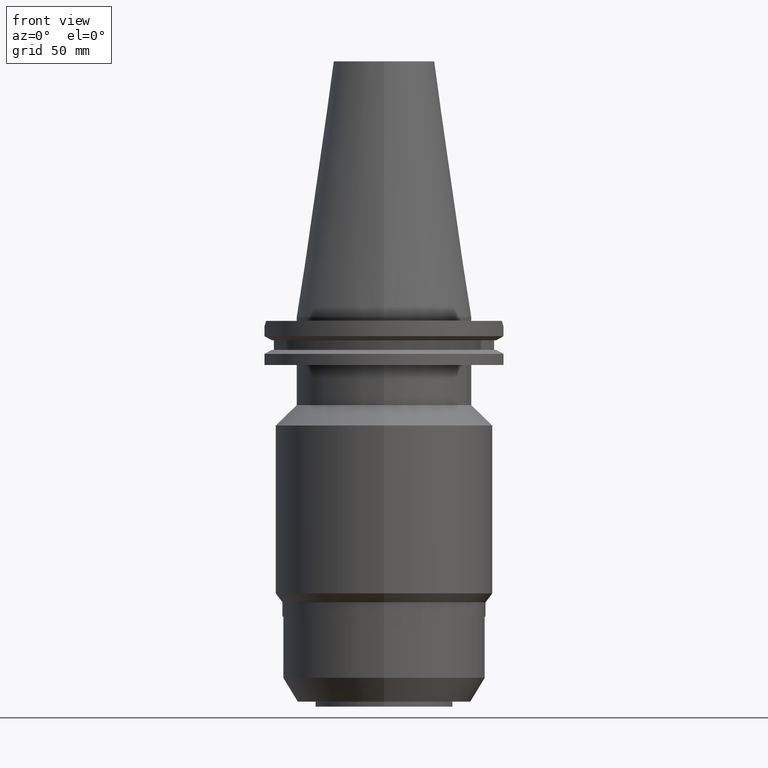
[diagram: clean part render]
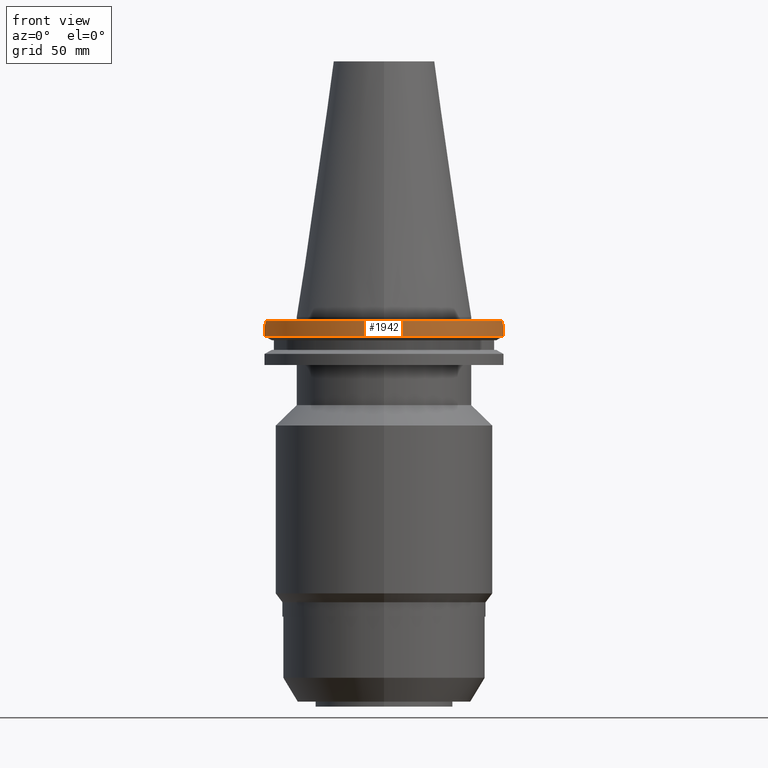
[diagram: same view with one face highlighted and labeled with its STEP entity id]
A machine part, front view. The second image highlights one B-rep face of the part: STEP entity #1942.
In plain terms, the highlighted cylindrical surface (partial cylindrical patch) has radius 49.2125 mm, axis along (0, 0, -1).
Its self-contained STEP definition (entity closure, byte-faithful):
#108=CARTESIAN_POINT('',(0.E0,2.625887666732E-14,-1.5E0));
#109=DIRECTION('',(0.E0,0.E0,-1.E0));
#110=DIRECTION('',(9.514024724200E-1,-3.079502159004E-1,0.E0));
#111=AXIS2_PLACEMENT_3D('',#108,#109,#110);
#116=CARTESIAN_POINT('',(0.E0,2.625887666732E-14,-1.5E0));
#117=DIRECTION('',(0.E0,0.E0,-1.E0));
#118=DIRECTION('',(0.E0,-1.E0,0.E0));
#119=AXIS2_PLACEMENT_3D('',#116,#117,#118);
#575=CARTESIAN_POINT('',(4.682089417397E1,-1.5155E1,-1.5E0));
#576=CARTESIAN_POINT('',(4.705739607797E1,-1.442433483212E1,-2.230665167880E0));
#577=CARTESIAN_POINT('',(4.727588310257E1,-1.369098379593E1,-2.964016204073E0));
#578=CARTESIAN_POINT('',(4.747671146204E1,-1.2955E1,-3.699999999999E0));
#583=DIRECTION('',(2.622645846769E-13,-3.323839354412E-14,-1.E0));
#584=VECTOR('',#583,3.901333230925E0);
#585=CARTESIAN_POINT('',(4.747671146204E1,-1.2955E1,-3.7E0));
#586=LINE('',#585,#584);
#590=DIRECTION('',(2.640858665149E-13,3.369371400363E-14,1.E0));
#591=VECTOR('',#590,3.901333230925E0);
#592=CARTESIAN_POINT('',(-4.747671146204E1,-1.2955E1,-7.601333230925E0));
#593=LINE('',#592,#591);
#597=CARTESIAN_POINT('',(-4.747671146204E1,-1.2955E1,-3.699999999999E0));
#598=CARTESIAN_POINT('',(-4.727588310257E1,-1.369098379593E1,
-2.964016204073E0));
#599=CARTESIAN_POINT('',(-4.705739607797E1,-1.442433483212E1,
-2.230665167880E0));
#600=CARTESIAN_POINT('',(-4.682089417397E1,-1.5155E1,-1.5E0));
#654=CARTESIAN_POINT('',(4.747671146204E1,-1.2955E1,-7.601333230925E0));
#674=CARTESIAN_POINT('',(0.E0,1.121722380079E-14,-7.601333230926E0));
#675=DIRECTION('',(0.E0,0.E0,1.E0));
#676=DIRECTION('',(-9.647287063661E-1,-2.632461264923E-1,0.E0));
#677=AXIS2_PLACEMENT_3D('',#674,#675,#676);
#682=CARTESIAN_POINT('',(0.E0,1.121722380079E-14,-7.601333230926E0));
#683=DIRECTION('',(0.E0,0.E0,1.E0));
#684=DIRECTION('',(0.E0,-1.E0,0.E0));
#685=AXIS2_PLACEMENT_3D('',#682,#683,#684);
#1439=VERTEX_POINT('',#654);
#1440=CARTESIAN_POINT('',(4.747671146204E1,-1.2955E1,-3.7E0));
#1441=VERTEX_POINT('',#1440);
#1454=CARTESIAN_POINT('',(-4.747671146204E1,-1.2955E1,-3.7E0));
#1455=VERTEX_POINT('',#1454);
#1456=CARTESIAN_POINT('',(-4.747671146204E1,-1.2955E1,-7.601333230925E0));
#1457=VERTEX_POINT('',#1456);
#1508=CARTESIAN_POINT('',(0.E0,-4.92125E1,-7.601333230926E0));
#1509=VERTEX_POINT('',#1508);
#1513=VERTEX_POINT('',#575);
#1514=VERTEX_POINT('',#600);
#1515=CARTESIAN_POINT('',(-6.280856145559E-14,-4.92125E1,-1.5E0));
#1516=VERTEX_POINT('',#1515);
#1922=CARTESIAN_POINT('',(0.E0,2.625887666732E-14,1.1442E2));
#1923=DIRECTION('',(0.E0,0.E0,-1.E0));
#1924=DIRECTION('',(0.E0,-1.E0,0.E0));
#1925=AXIS2_PLACEMENT_3D('',#1922,#1923,#1924);
#1926=CYLINDRICAL_SURFACE('',#1925,4.92125E1);
#1928=ORIENTED_EDGE('',*,*,#1927,.T.);
#1930=ORIENTED_EDGE('',*,*,#1929,.T.);
#1932=ORIENTED_EDGE('',*,*,#1931,.F.);
#1934=ORIENTED_EDGE('',*,*,#1933,.F.);
#1936=ORIENTED_EDGE('',*,*,#1935,.T.);
#1937=ORIENTED_EDGE('',*,*,#1914,.T.);
#1938=ORIENTED_EDGE('',*,*,#1621,.F.);
#1939=ORIENTED_EDGE('',*,*,#1619,.F.);
#1940=EDGE_LOOP('',(#1928,#1930,#1932,#1934,#1936,#1937,#1938,#1939));
#1941=FACE_OUTER_BOUND('',#1940,.F.);
#112=CIRCLE('',#111,4.92125E1);
#120=CIRCLE('',#119,4.92125E1);
#579=B_SPLINE_CURVE_WITH_KNOTS('',3,(#575,#576,#577,#578),.UNSPECIFIED.,.F.,.F.,
(4,4),(0.E0,1.E0),.UNSPECIFIED.);
#601=B_SPLINE_CURVE_WITH_KNOTS('',3,(#597,#598,#599,#600),.UNSPECIFIED.,.F.,.F.,
(4,4),(0.E0,1.E0),.UNSPECIFIED.);
#678=CIRCLE('',#677,4.92125E1);
#686=CIRCLE('',#685,4.92125E1);
#1619=EDGE_CURVE('',#1513,#1516,#112,.T.);
#1621=EDGE_CURVE('',#1516,#1514,#120,.T.);
#1914=EDGE_CURVE('',#1455,#1514,#601,.T.);
#1927=EDGE_CURVE('',#1513,#1441,#579,.T.);
#1929=EDGE_CURVE('',#1441,#1439,#586,.T.);
#1931=EDGE_CURVE('',#1509,#1439,#686,.T.);
#1933=EDGE_CURVE('',#1457,#1509,#678,.T.);
#1935=EDGE_CURVE('',#1457,#1455,#593,.T.);
#1942=ADVANCED_FACE('',(#1941),#1926,.T.);